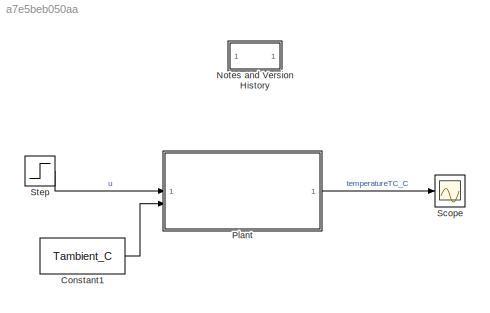
MODEL slx_a7e5beb050aa
KIND model
CONFIG AbsTol = auto
CONFIG EnableMultiTasking = off
CONFIG FixedStep = deltaT_s
CONFIG MaxStep = auto
CONFIG MinStep = auto
CONFIG RelTol = 1e-3
CONFIG SampleTimeConstraint = Unconstrained
CONFIG SolverName = FixedStepAuto
CONFIG StartTime = 0.0
CONFIG StopTime = tFinal_s
BLOCK [Constant] Constant1
  Value = Tambient_C
BLOCK [SubSystem] Notes and Version History
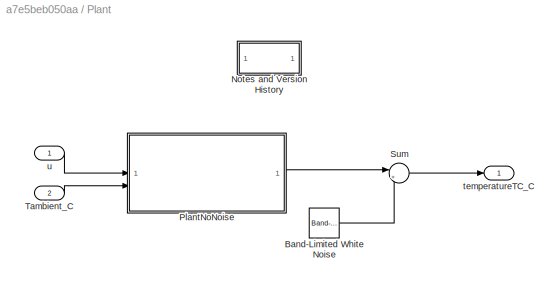
BLOCK [SubSystem] Plant
BLOCK [Reference] Plant/Band-Limited White Noise  REF=simulink/Sources/Band-Limited
White Noise
  SourceBlock = simulink/Sources/Band-Limited\nWhite Noise
  SourceType = Band-Limited White Noise.
BLOCK [SubSystem] Plant/Notes and Version History
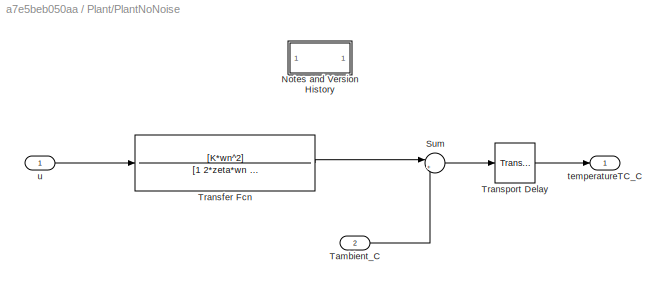
BLOCK [SubSystem] Plant/PlantNoNoise
BLOCK [SubSystem] Plant/PlantNoNoise/Notes and Version History
BLOCK [Sum] Plant/PlantNoNoise/Sum
  Inputs = |++
BLOCK [Inport] Plant/PlantNoNoise/Tambient_C
  Port = 2
BLOCK [TransferFcn] Plant/PlantNoNoise/Transfer Fcn
  Denominator = [1 2*zeta*wn wn^2]
  Numerator = [K*wn^2]
BLOCK [TransportDelay] Plant/PlantNoNoise/Transport Delay
  DelayTime = Tdelay_s
BLOCK [Outport] Plant/PlantNoNoise/temperatureTC_C
BLOCK [Inport] Plant/PlantNoNoise/u
BLOCK [Sum] Plant/Sum
  Inputs = |++
BLOCK [Inport] Plant/Tambient_C
  Port = 2
BLOCK [Outport] Plant/temperatureTC_C
BLOCK [Inport] Plant/u
BLOCK [Scope] Scope
  Floating = off
  NumInputPorts = 1
  ScopeSpecificationString = Simulink.scopes.TimeScopeBlockCfg('CurrentConfiguration', extmgr.ConfigurationSet(extmgr.Configuration('Core','General UI',true),extmgr.Configuration('Core','Source UI',true),extmgr.Configuration('Sources','WiredSimulink',true,'DataLoggingVariableName','ScopeData1'),extmgr.Configuration('Visuals','Time Domain',true,'SerializedDisplays',{struct('MinYLimReal','-9.12423','MaxYLimReal','81.36033','YLa...<+1493ch>
BLOCK [Step] Step
  SampleTime = 0
  Time = 60
ANNOTATION Notes and Version History: Skeleton model for thermal system used for homework. Christopher Lum <email> Version History 02/05/25: Created
ANNOTATION Plant/Notes and Version History: Similar to PlantType03 but includes a noise model for the sensor output. Christopher Lum <email> Version History 01/26/25: Created
ANNOTATION Plant/PlantNoNoise/Notes and Version History: Plant used for simulation Christopher Lum <email> Version History 01/24/25: Created
LINE Constant1:1 -> Plant:2
LINE Plant/Band-Limited White Noise:1 -> Plant/Sum:2
LINE Plant/PlantNoNoise/Sum:1 -> Plant/PlantNoNoise/Transport Delay:1
LINE Plant/PlantNoNoise/Tambient_C:1 -> Plant/PlantNoNoise/Sum:2
LINE Plant/PlantNoNoise/Transfer Fcn:1 -> Plant/PlantNoNoise/Sum:1
LINE Plant/PlantNoNoise/Transport Delay:1 -> Plant/PlantNoNoise/temperatureTC_C:1
LINE Plant/PlantNoNoise/u:1 -> Plant/PlantNoNoise/Transfer Fcn:1
LINE Plant/PlantNoNoise:1 -> Plant/Sum:1
LINE Plant/Sum:1 -> Plant/temperatureTC_C:1
LINE Plant/Tambient_C:1 -> Plant/PlantNoNoise:2
LINE Plant/u:1 -> Plant/PlantNoNoise:1
LINE Plant:1 -> Scope:1
LINE Step:1 -> Plant:1
